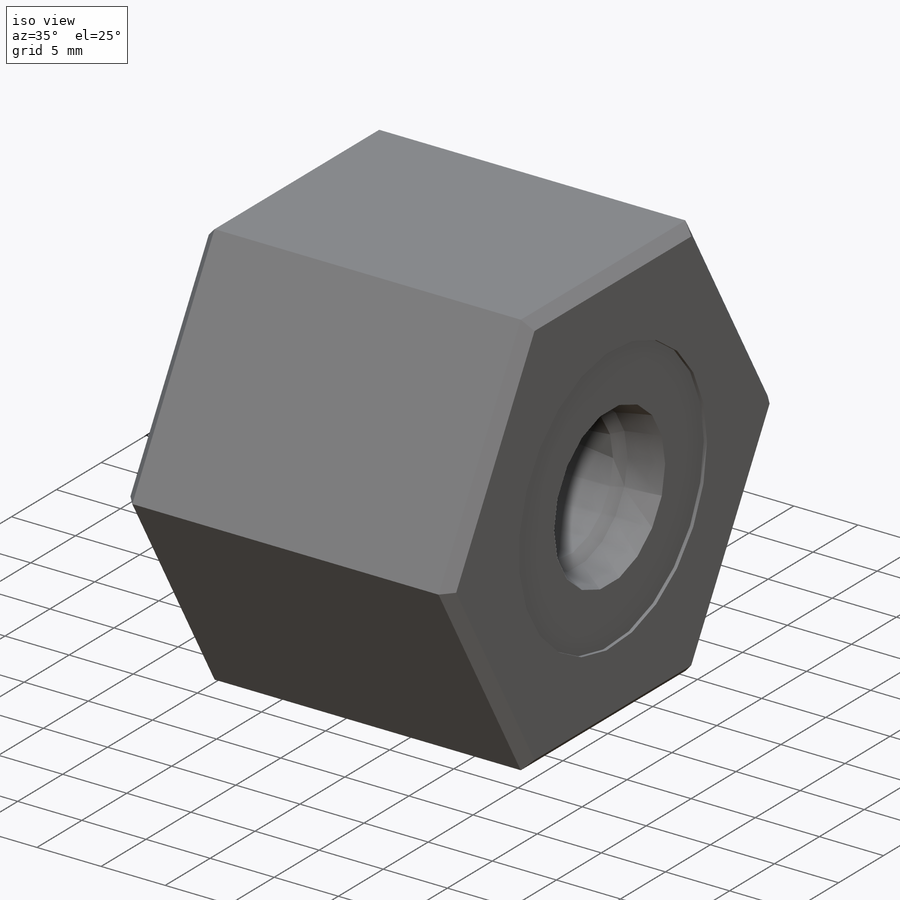
[diagram: iso view]
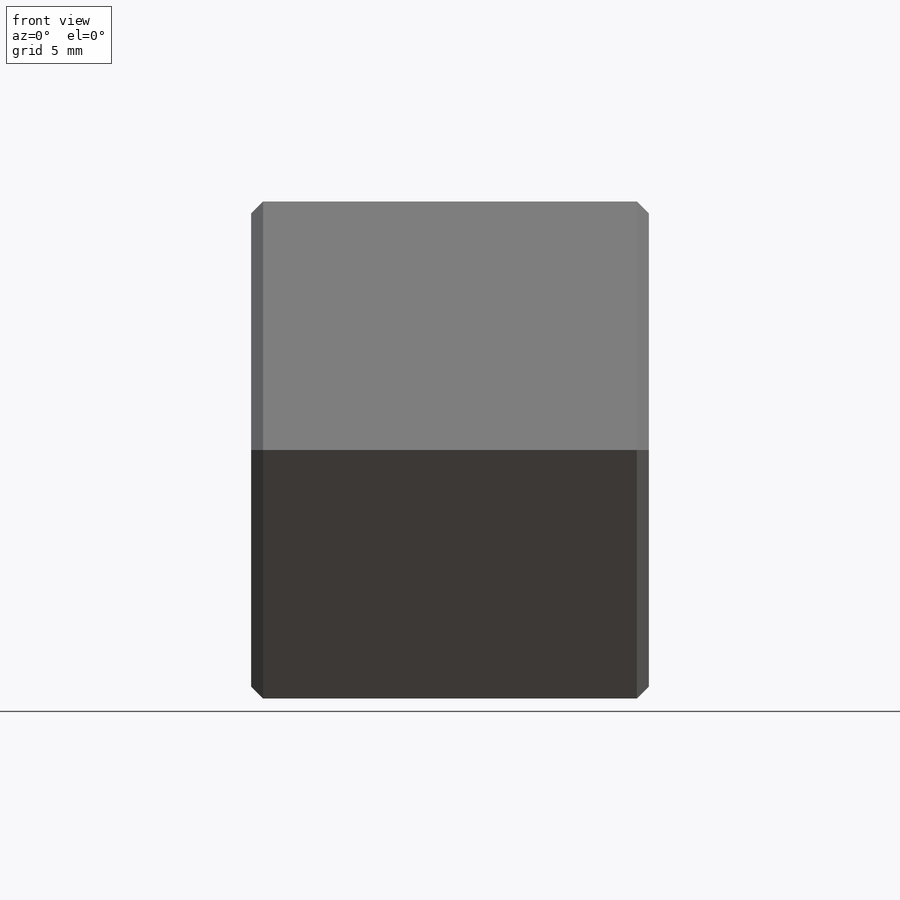
[diagram: front view]
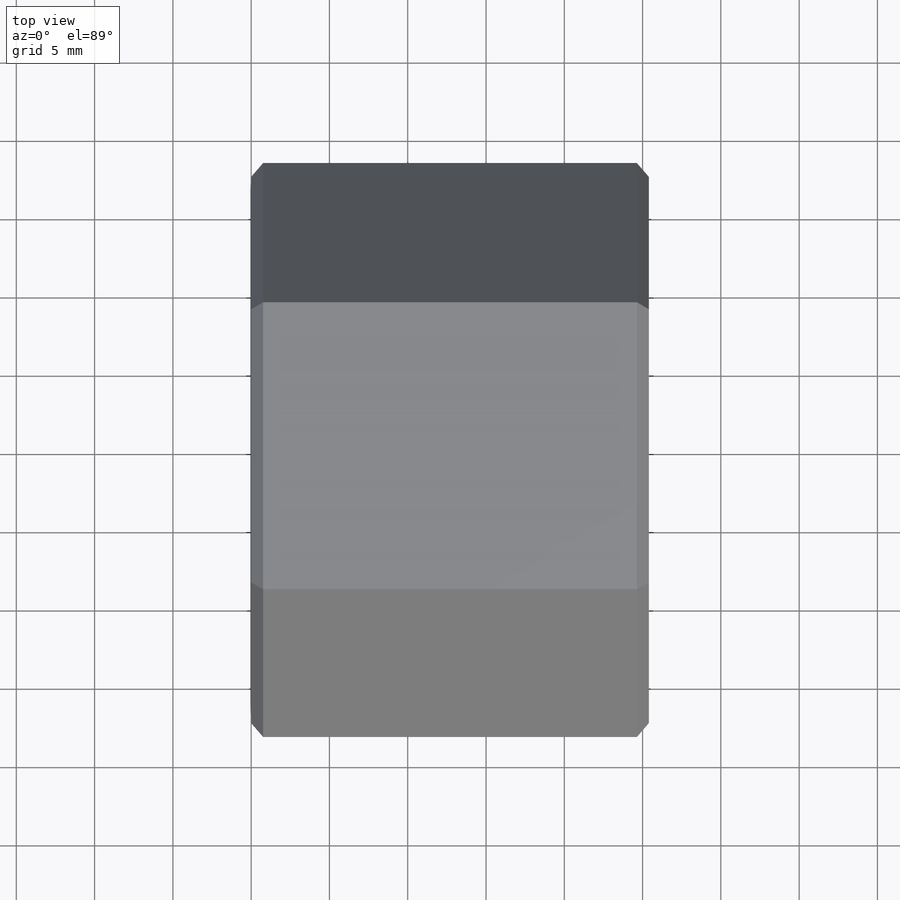
[diagram: top view]
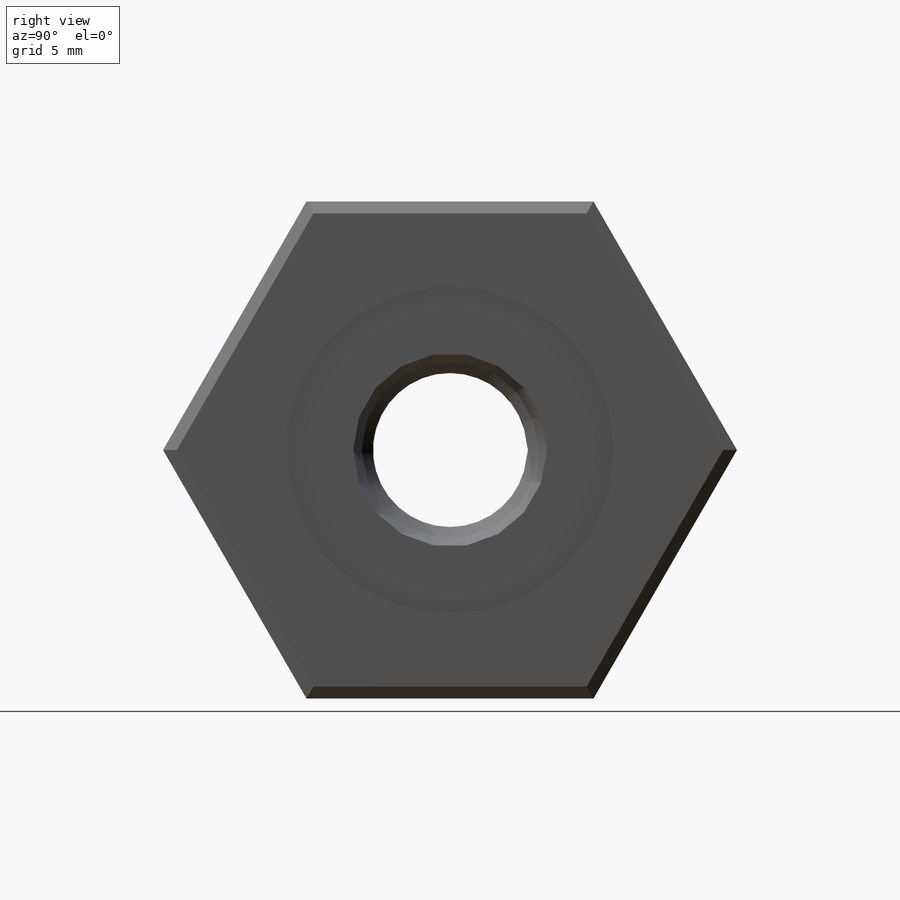
[diagram: right view]
SOLIDWORKS PART (.sldprt)
format: sldprt  version: not decoded by parser v0  size: 179,712 bytes
history: native  units: mm
features: chamfer x4, sketch x2, material x1, plane x1, extrude x1, cut_revolve x1 (+13 scaffold rows collapsed)
feature tree (23):
  scaffold x13  (default folders/planes/origin — collapsed)
  material  "Alloy Steel"
  plane  "Plane1"
  sketch  "Sketch1"
  extrude  "Extrude1"  Depth=25.4mm
  sketch  "Sketch2"
  cut_revolve  "Cut-Revolve1"  Angle=360deg
  chamfer  "Chamfer1"  Distance=0.254mm Angle=45deg
  chamfer  "Chamfer2"  Distance=0.762mm Angle=45deg
  chamfer  "Chamfer3"  Distance=0.762mm Angle=45deg
  chamfer  "Chamfer4"  Distance=0.762mm Angle=45deg
decode coverage: 6 of 8 modeling features carry decoded parameters
note: suppression state not decoded; provenance and decode notes live in map.json
